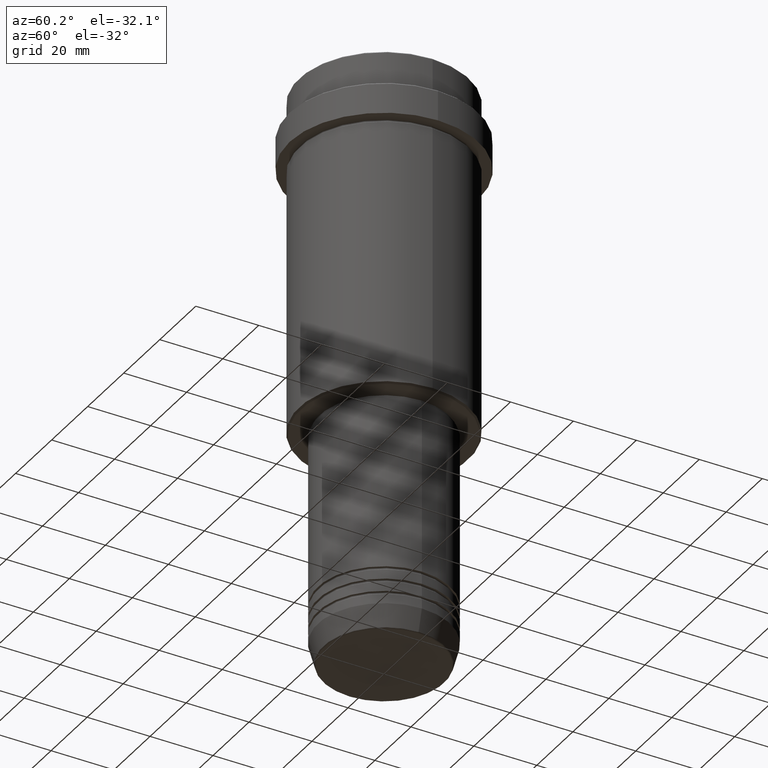
[diagram: clean part render]
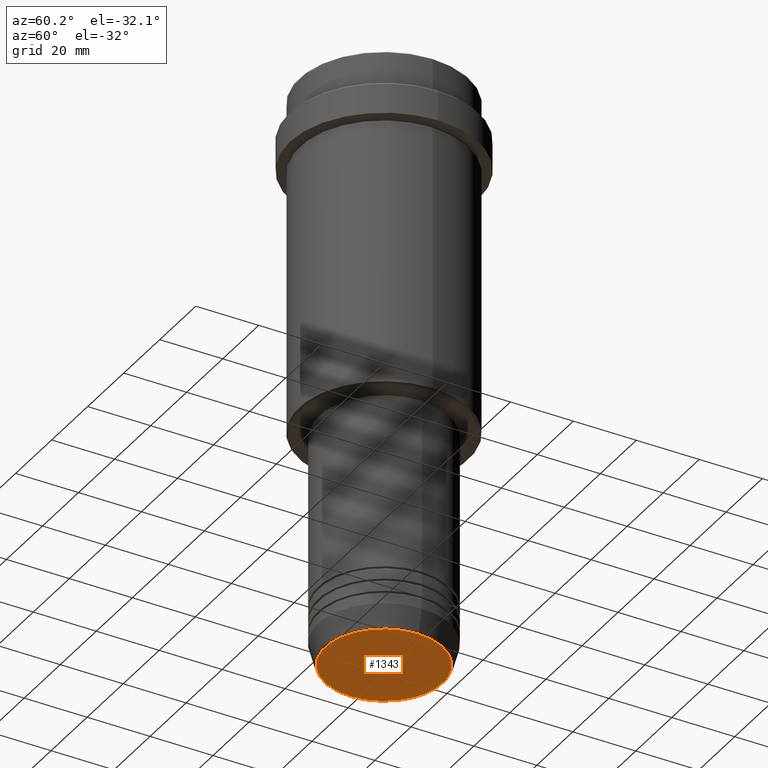
[diagram: same view with one face highlighted and labeled with its STEP entity id]
A machine part, auxiliary view. The second image highlights one B-rep face of the part: STEP entity #1343.
In plain terms, the highlighted planar face has unit normal (0, -0, 1).
Its self-contained STEP definition (entity closure, byte-faithful):
#24 = CARTESIAN_POINT ( 'NONE',  ( 18.74069215899266183, 0.000000000000000000, -183.0000000000000000 ) ) ;
#40 = CIRCLE ( 'NONE', #227, 18.74069215899266183 ) ;
#138 = DIRECTION ( 'NONE',  ( 0.000000000000000000, 0.000000000000000000, -1.000000000000000000 ) ) ;
#188 = VERTEX_POINT ( 'NONE', #24 ) ;
#227 = AXIS2_PLACEMENT_3D ( 'NONE', #1402, #645, #411 ) ;
#322 = CARTESIAN_POINT ( 'NONE',  ( -18.74069215899266183, 2.324645815916092713E-15, -183.0000000000000000 ) ) ;
#390 = VERTEX_POINT ( 'NONE', #322 ) ;
#411 = DIRECTION ( 'NONE',  ( 1.000000000000000000, 0.000000000000000000, 0.000000000000000000 ) ) ;
#465 = ORIENTED_EDGE ( 'NONE', *, *, #1247, .T. ) ;
#645 = DIRECTION ( 'NONE',  ( 0.000000000000000000, 0.000000000000000000, -1.000000000000000000 ) ) ;
#743 = FACE_OUTER_BOUND ( 'NONE', #1256, .T. ) ;
#752 = DIRECTION ( 'NONE',  ( 0.000000000000000000, -0.000000000000000000, 1.000000000000000000 ) ) ;
#829 = AXIS2_PLACEMENT_3D ( 'NONE', #1282, #752, #1178 ) ;
#859 = PLANE ( 'NONE',  #829 ) ;
#888 = CARTESIAN_POINT ( 'NONE',  ( 0.000000000000000000, 0.000000000000000000, -183.0000000000000000 ) ) ;
#899 = ORIENTED_EDGE ( 'NONE', *, *, #974, .T. ) ;
#963 = AXIS2_PLACEMENT_3D ( 'NONE', #888, #138, #1309 ) ;
#974 = EDGE_CURVE ( 'NONE', #390, #188, #1052, .T. ) ;
#1052 = CIRCLE ( 'NONE', #963, 18.74069215899266183 ) ;
#1178 = DIRECTION ( 'NONE',  ( 1.000000000000000000, 0.000000000000000000, 0.000000000000000000 ) ) ;
#1247 = EDGE_CURVE ( 'NONE', #188, #390, #40, .T. ) ;
#1256 = EDGE_LOOP ( 'NONE', ( #465, #899 ) ) ;
#1282 = CARTESIAN_POINT ( 'NONE',  ( 0.000000000000000000, 0.000000000000000000, -183.0000000000000000 ) ) ;
#1309 = DIRECTION ( 'NONE',  ( 1.000000000000000000, 0.000000000000000000, 0.000000000000000000 ) ) ;
#1343 = ADVANCED_FACE ( 'NONE', ( #743 ), #859, .F. ) ;
#1402 = CARTESIAN_POINT ( 'NONE',  ( 0.000000000000000000, 0.000000000000000000, -183.0000000000000000 ) ) ;